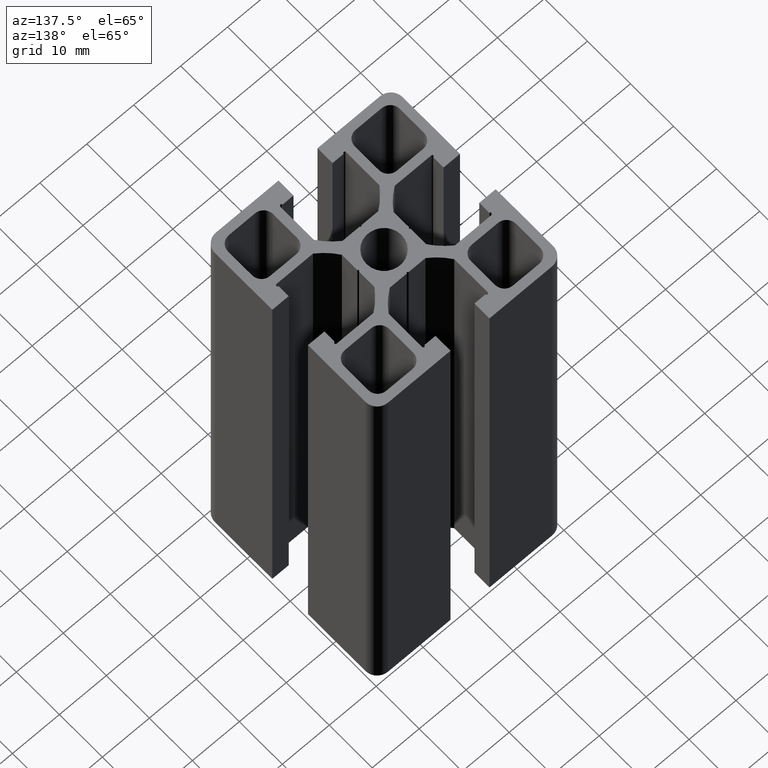
[diagram: clean part render]
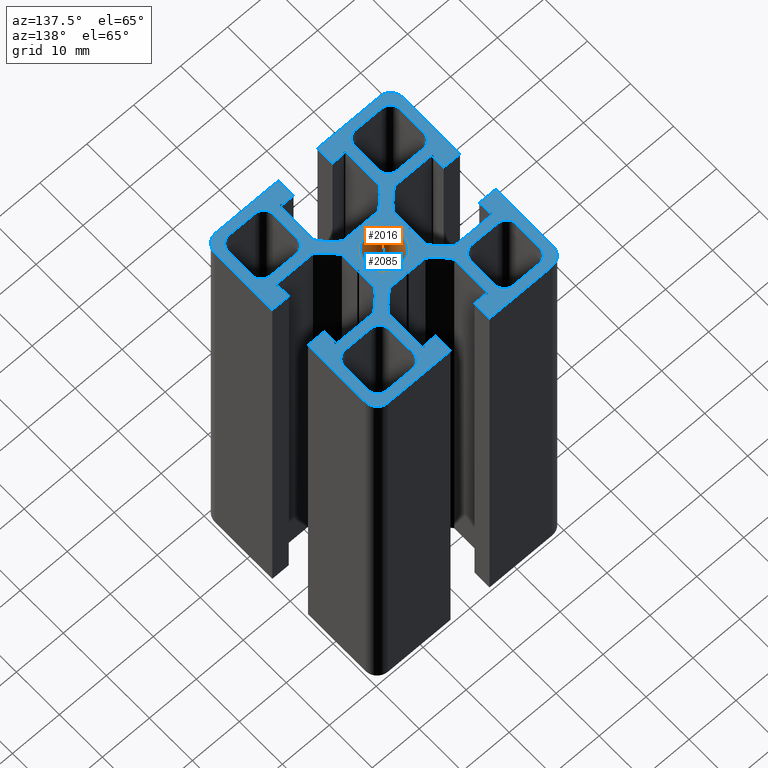
[diagram: same view with the hole feature highlighted: cylindrical wall and planar end face, labeled with their STEP entity ids]
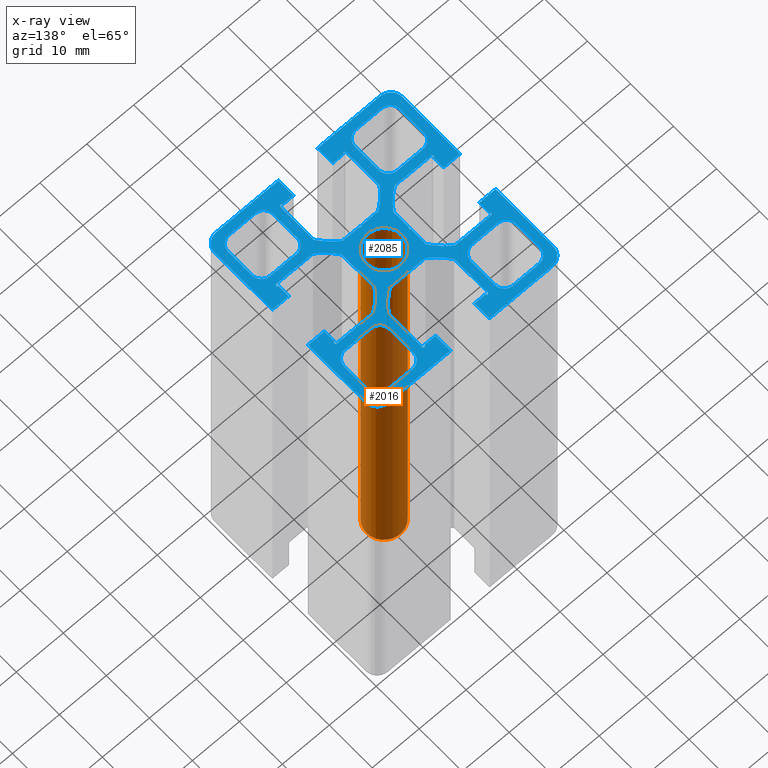
[diagram: x-ray of the same camera — body ghosted, the hole faces saturated]
A machine part, auxiliary view. The highlighted faces form one hole feature of diameter 7.47 mm: the cylindrical wall (entity #2016, orange) and its adjacent planar end face (entity #2085, blue) — they share a circular edge in the B-rep.
The next image is the same camera in x-ray (body ghosted, the hole faces saturated) — the bore reads through the body.
Wall:
#15=FACE_BOUND('',#228,.T.);
#124=FACE_OUTER_BOUND('',#227,.T.);
#227=EDGE_LOOP('',(#1471));
#228=EDGE_LOOP('',(#1472));
#797=CIRCLE('',#2154,3.735);
#798=CIRCLE('',#2155,3.735);
#903=VERTEX_POINT('',#3044);
#904=VERTEX_POINT('',#3046);
#1137=EDGE_CURVE('',#903,#903,#797,.T.);
#1138=EDGE_CURVE('',#904,#904,#798,.T.);
#1471=ORIENTED_EDGE('',*,*,#1137,.F.);
#1472=ORIENTED_EDGE('',*,*,#1138,.F.);
#1963=CYLINDRICAL_SURFACE('',#2153,3.735);
#2016=ADVANCED_FACE('',(#124,#15),#1963,.F.);
#2153=AXIS2_PLACEMENT_3D('',#3043,#2460,#2461);
#2154=AXIS2_PLACEMENT_3D('',#3045,#2462,#2463);
#2155=AXIS2_PLACEMENT_3D('',#3047,#2464,#2465);
#2460=DIRECTION('center_axis',(0.,0.,1.));
#2461=DIRECTION('ref_axis',(-1.,0.,0.));
#2462=DIRECTION('center_axis',(0.,0.,-1.));
#2463=DIRECTION('ref_axis',(-1.,0.,0.));
#2464=DIRECTION('center_axis',(0.,0.,1.));
#2465=DIRECTION('ref_axis',(-1.,0.,0.));
#3043=CARTESIAN_POINT('Origin',(-1.06581410364015E-13,3.5527136788005E-14,
0.));
#3044=CARTESIAN_POINT('',(3.73499999999989,3.59845423674865E-14,100.));
#3045=CARTESIAN_POINT('Origin',(-1.06581410364015E-13,3.5527136788005E-14,
100.));
#3046=CARTESIAN_POINT('',(3.73499999999989,3.59845423674865E-14,0.));
#3047=CARTESIAN_POINT('Origin',(-1.06581410364015E-13,3.5527136788005E-14,
0.));
End face:
#16=FACE_BOUND('',#298,.T.);
#17=FACE_BOUND('',#299,.T.);
#18=FACE_BOUND('',#300,.T.);
#19=FACE_BOUND('',#301,.T.);
#20=FACE_BOUND('',#302,.T.);
#90=PLANE('',#2264);
#193=FACE_OUTER_BOUND('',#297,.T.);
#297=EDGE_LOOP('',(#1745,#1746,#1747,#1748,#1749,#1750,#1751,#1752,#1753,
#1754,#1755,#1756,#1757,#1758,#1759,#1760,#1761,#1762,#1763,#1764,#1765,
#1766,#1767,#1768,#1769,#1770,#1771,#1772,#1773,#1774,#1775,#1776,#1777,
#1778,#1779,#1780,#1781,#1782,#1783,#1784,#1785,#1786,#1787,#1788,#1789,
#1790,#1791,#1792,#1793,#1794,#1795,#1796,#1797,#1798,#1799,#1800,#1801,
#1802,#1803,#1804,#1805,#1806,#1807,#1808,#1809,#1810,#1811,#1812));
#298=EDGE_LOOP('',(#1813,#1814,#1815,#1816,#1817,#1818,#1819,#1820));
#299=EDGE_LOOP('',(#1821,#1822,#1823,#1824,#1825,#1826,#1827,#1828));
#300=EDGE_LOOP('',(#1829,#1830,#1831,#1832,#1833,#1834,#1835,#1836));
#301=EDGE_LOOP('',(#1837,#1838,#1839,#1840,#1841,#1842,#1843,#1844));
#302=EDGE_LOOP('',(#1845));
#313=LINE('',#2865,#541);
#317=LINE('',#2877,#545);
#321=LINE('',#2889,#549);
#324=LINE('',#2898,#552);
#329=LINE('',#2913,#557);
#333=LINE('',#2925,#561);
#337=LINE('',#2937,#565);
#340=LINE('',#2946,#568);
#343=LINE('',#2954,#571);
#348=LINE('',#2967,#576);
#352=LINE('',#2979,#580);
#356=LINE('',#2991,#584);
#359=LINE('',#3002,#587);
#364=LINE('',#3015,#592);
#368=LINE('',#3027,#596);
#372=LINE('',#3039,#600);
#375=LINE('',#3055,#603);
#378=LINE('',#3061,#606);
#381=LINE('',#3067,#609);
#384=LINE('',#3073,#612);
#388=LINE('',#3085,#616);
#392=LINE('',#3097,#620);
#395=LINE('',#3103,#623);
#398=LINE('',#3109,#626);
#402=LINE('',#3121,#630);
#405=LINE('',#3127,#633);
#408=LINE('',#3133,#636);
#412=LINE('',#3145,#640);
#416=LINE('',#3157,#644);
#419=LINE('',#3163,#647);
#422=LINE('',#3169,#650);
#425=LINE('',#3175,#653);
#429=LINE('',#3187,#657);
#433=LINE('',#3199,#661);
#436=LINE('',#3205,#664);
#439=LINE('',#3211,#667);
#443=LINE('',#3223,#671);
#446=LINE('',#3229,#674);
#449=LINE('',#3235,#677);
#453=LINE('',#3247,#681);
#457=LINE('',#3259,#685);
#460=LINE('',#3265,#688);
#463=LINE('',#3271,#691);
#466=LINE('',#3277,#694);
#470=LINE('',#3289,#698);
#474=LINE('',#3301,#702);
#477=LINE('',#3307,#705);
#480=LINE('',#3313,#708);
#484=LINE('',#3325,#712);
#487=LINE('',#3331,#715);
#490=LINE('',#3337,#718);
#494=LINE('',#3349,#722);
#498=LINE('',#3361,#726);
#501=LINE('',#3367,#729);
#504=LINE('',#3373,#732);
#507=LINE('',#3379,#735);
#511=LINE('',#3391,#739);
#515=LINE('',#3403,#743);
#518=LINE('',#3409,#746);
#521=LINE('',#3415,#749);
#525=LINE('',#3427,#753);
#528=LINE('',#3433,#756);
#531=LINE('',#3439,#759);
#535=LINE('',#3451,#763);
#541=VECTOR('',#2280,5.60000000000006);
#545=VECTOR('',#2292,5.60000000000021);
#549=VECTOR('',#2304,5.60000000000016);
#552=VECTOR('',#2315,5.60000000000012);
#557=VECTOR('',#2328,5.60000000000019);
#561=VECTOR('',#2340,5.6000000000002);
#565=VECTOR('',#2352,5.60000000000013);
#568=VECTOR('',#2363,5.60000000000009);
#571=VECTOR('',#2368,5.60000000000019);
#576=VECTOR('',#2381,5.60000000000009);
#580=VECTOR('',#2393,5.60000000000013);
#584=VECTOR('',#2405,5.6000000000002);
#587=VECTOR('',#2416,5.60000000000012);
#592=VECTOR('',#2429,5.6000000000002);
#596=VECTOR('',#2441,5.60000000000021);
#600=VECTOR('',#2453,5.60000000000009);
#603=VECTOR('',#2470,3.60000000000007);
#606=VECTOR('',#2475,0.282842712474622);
#609=VECTOR('',#2480,0.282842712474566);
#612=VECTOR('',#2485,3.60000000000005);
#616=VECTOR('',#2497,7.80000000000003);
#620=VECTOR('',#2509,2.35);
#623=VECTOR('',#2514,3.50000000000001);
#626=VECTOR('',#2519,13.3500000000001);
#630=VECTOR('',#2531,13.3500000000001);
#633=VECTOR('',#2536,3.5);
#636=VECTOR('',#2541,2.34999999999999);
#640=VECTOR('',#2553,7.80000000000001);
#644=VECTOR('',#2565,3.60000000000003);
#647=VECTOR('',#2570,0.282842712474525);
#650=VECTOR('',#2575,0.282842712474676);
#653=VECTOR('',#2580,3.60000000000007);
#657=VECTOR('',#2592,7.80000000000001);
#661=VECTOR('',#2604,2.34999999999999);
#664=VECTOR('',#2609,3.5);
#667=VECTOR('',#2614,13.3500000000001);
#671=VECTOR('',#2626,13.3500000000001);
#674=VECTOR('',#2631,3.50000000000001);
#677=VECTOR('',#2636,2.35000000000002);
#681=VECTOR('',#2648,7.80000000000003);
#685=VECTOR('',#2660,3.60000000000005);
#688=VECTOR('',#2665,0.282842712474786);
#691=VECTOR('',#2670,0.282842712474403);
#694=VECTOR('',#2675,3.60000000000007);
#698=VECTOR('',#2687,7.80000000000005);
#702=VECTOR('',#2699,2.35000000000001);
#705=VECTOR('',#2704,3.50000000000001);
#708=VECTOR('',#2709,13.3500000000001);
#712=VECTOR('',#2721,13.3500000000001);
#715=VECTOR('',#2726,3.49999999999998);
#718=VECTOR('',#2731,2.34999999999999);
#722=VECTOR('',#2743,7.80000000000002);
#726=VECTOR('',#2755,3.60000000000007);
#729=VECTOR('',#2760,0.2828427124746);
#732=VECTOR('',#2765,0.282842712474626);
#735=VECTOR('',#2770,3.60000000000003);
#739=VECTOR('',#2782,7.8);
#743=VECTOR('',#2794,2.35000000000003);
#746=VECTOR('',#2799,3.49999999999998);
#749=VECTOR('',#2804,13.3500000000001);
#753=VECTOR('',#2816,13.3500000000001);
#756=VECTOR('',#2821,3.50000000000001);
#759=VECTOR('',#2826,2.34999999999999);
#763=VECTOR('',#2838,7.80000000000005);
#766=CIRCLE('',#2091,2.);
#768=CIRCLE('',#2095,2.);
#770=CIRCLE('',#2099,2.);
#772=CIRCLE('',#2103,2.);
#774=CIRCLE('',#2107,2.);
#776=CIRCLE('',#2111,2.);
#778=CIRCLE('',#2115,2.);
#780=CIRCLE('',#2119,2.);
#782=CIRCLE('',#2124,2.);
#784=CIRCLE('',#2128,2.);
#786=CIRCLE('',#2132,2.);
#788=CIRCLE('',#2136,2.);
#790=CIRCLE('',#2140,2.);
#792=CIRCLE('',#2144,2.);
#794=CIRCLE('',#2148,2.);
#796=CIRCLE('',#2152,2.);
#797=CIRCLE('',#2154,3.735);
#800=CIRCLE('',#2162,12.8999999999991);
#802=CIRCLE('',#2166,0.249999999999986);
#804=CIRCLE('',#2172,2.49999999999996);
#806=CIRCLE('',#2178,0.249999999999986);
#808=CIRCLE('',#2182,12.8999999999991);
#810=CIRCLE('',#2189,12.8999999999991);
#812=CIRCLE('',#2193,0.249999999999986);
#814=CIRCLE('',#2199,2.49999999999996);
#816=CIRCLE('',#2205,0.249999999999986);
#818=CIRCLE('',#2209,12.8999999999991);
#820=CIRCLE('',#2216,12.8999999999991);
#822=CIRCLE('',#2220,0.249999999999986);
#824=CIRCLE('',#2226,2.49999999999996);
#826=CIRCLE('',#2232,0.249999999999986);
#828=CIRCLE('',#2236,12.8999999999991);
#830=CIRCLE('',#2243,12.8999999999991);
#832=CIRCLE('',#2247,0.249999999999986);
#834=CIRCLE('',#2253,2.49999999999996);
#836=CIRCLE('',#2259,0.249999999999986);
#838=CIRCLE('',#2263,12.8999999999991);
#841=VERTEX_POINT('',#2855);
#842=VERTEX_POINT('',#2857);
#844=VERTEX_POINT('',#2863);
#846=VERTEX_POINT('',#2869);
#848=VERTEX_POINT('',#2875);
#850=VERTEX_POINT('',#2881);
#852=VERTEX_POINT('',#2887);
#854=VERTEX_POINT('',#2893);
#857=VERTEX_POINT('',#2903);
#858=VERTEX_POINT('',#2905);
#860=VERTEX_POINT('',#2911);
#862=VERTEX_POINT('',#2917);
#864=VERTEX_POINT('',#2923);
#866=VERTEX_POINT('',#2929);
#868=VERTEX_POINT('',#2935);
#870=VERTEX_POINT('',#2941);
#873=VERTEX_POINT('',#2951);
#874=VERTEX_POINT('',#2953);
#876=VERTEX_POINT('',#2959);
#878=VERTEX_POINT('',#2965);
#880=VERTEX_POINT('',#2971);
#882=VERTEX_POINT('',#2977);
#884=VERTEX_POINT('',#2983);
#886=VERTEX_POINT('',#2989);
#889=VERTEX_POINT('',#2999);
#890=VERTEX_POINT('',#3001);
#892=VERTEX_POINT('',#3007);
#894=VERTEX_POINT('',#3013);
#896=VERTEX_POINT('',#3019);
#898=VERTEX_POINT('',#3025);
#900=VERTEX_POINT('',#3031);
#902=VERTEX_POINT('',#3037);
#903=VERTEX_POINT('',#3044);
#907=VERTEX_POINT('',#3052);
#908=VERTEX_POINT('',#3054);
#910=VERTEX_POINT('',#3060);
#912=VERTEX_POINT('',#3066);
#914=VERTEX_POINT('',#3072);
#916=VERTEX_POINT('',#3078);
#918=VERTEX_POINT('',#3084);
#920=VERTEX_POINT('',#3090);
#922=VERTEX_POINT('',#3096);
#924=VERTEX_POINT('',#3102);
#926=VERTEX_POINT('',#3108);
#928=VERTEX_POINT('',#3114);
#930=VERTEX_POINT('',#3120);
#932=VERTEX_POINT('',#3126);
#934=VERTEX_POINT('',#3132);
#936=VERTEX_POINT('',#3138);
#938=VERTEX_POINT('',#3144);
#940=VERTEX_POINT('',#3150);
#942=VERTEX_POINT('',#3156);
#944=VERTEX_POINT('',#3162);
#946=VERTEX_POINT('',#3168);
#948=VERTEX_POINT('',#3174);
#950=VERTEX_POINT('',#3180);
#952=VERTEX_POINT('',#3186);
#954=VERTEX_POINT('',#3192);
#956=VERTEX_POINT('',#3198);
#958=VERTEX_POINT('',#3204);
#960=VERTEX_POINT('',#3210);
#962=VERTEX_POINT('',#3216);
#964=VERTEX_POINT('',#3222);
#966=VERTEX_POINT('',#3228);
#968=VERTEX_POINT('',#3234);
#970=VERTEX_POINT('',#3240);
#972=VERTEX_POINT('',#3246);
#974=VERTEX_POINT('',#3252);
#976=VERTEX_POINT('',#3258);
#978=VERTEX_POINT('',#3264);
#980=VERTEX_POINT('',#3270);
#982=VERTEX_POINT('',#3276);
#984=VERTEX_POINT('',#3282);
#986=VERTEX_POINT('',#3288);
#988=VERTEX_POINT('',#3294);
#990=VERTEX_POINT('',#3300);
#992=VERTEX_POINT('',#3306);
#994=VERTEX_POINT('',#3312);
#996=VERTEX_POINT('',#3318);
#998=VERTEX_POINT('',#3324);
#1000=VERTEX_POINT('',#3330);
#1002=VERTEX_POINT('',#3336);
#1004=VERTEX_POINT('',#3342);
#1006=VERTEX_POINT('',#3348);
#1008=VERTEX_POINT('',#3354);
#1010=VERTEX_POINT('',#3360);
#1012=VERTEX_POINT('',#3366);
#1014=VERTEX_POINT('',#3372);
#1016=VERTEX_POINT('',#3378);
#1018=VERTEX_POINT('',#3384);
#1020=VERTEX_POINT('',#3390);
#1022=VERTEX_POINT('',#3396);
#1024=VERTEX_POINT('',#3402);
#1026=VERTEX_POINT('',#3408);
#1028=VERTEX_POINT('',#3414);
#1030=VERTEX_POINT('',#3420);
#1032=VERTEX_POINT('',#3426);
#1034=VERTEX_POINT('',#3432);
#1036=VERTEX_POINT('',#3438);
#1038=VERTEX_POINT('',#3444);
#1040=VERTEX_POINT('',#3450);
#1043=EDGE_CURVE('',#842,#841,#766,.T.);
#1047=EDGE_CURVE('',#841,#844,#313,.T.);
#1050=EDGE_CURVE('',#844,#846,#768,.T.);
#1053=EDGE_CURVE('',#846,#848,#317,.T.);
#1056=EDGE_CURVE('',#848,#850,#770,.T.);
#1059=EDGE_CURVE('',#850,#852,#321,.T.);
#1062=EDGE_CURVE('',#852,#854,#772,.T.);
#1064=EDGE_CURVE('',#854,#842,#324,.T.);
#1067=EDGE_CURVE('',#858,#857,#774,.T.);
#1071=EDGE_CURVE('',#857,#860,#329,.T.);
#1074=EDGE_CURVE('',#860,#862,#776,.T.);
#1077=EDGE_CURVE('',#862,#864,#333,.T.);
#1080=EDGE_CURVE('',#864,#866,#778,.T.);
#1083=EDGE_CURVE('',#866,#868,#337,.T.);
#1086=EDGE_CURVE('',#868,#870,#780,.T.);
#1088=EDGE_CURVE('',#870,#858,#340,.T.);
#1091=EDGE_CURVE('',#874,#873,#343,.T.);
#1095=EDGE_CURVE('',#873,#876,#782,.T.);
#1098=EDGE_CURVE('',#876,#878,#348,.T.);
#1101=EDGE_CURVE('',#878,#880,#784,.T.);
#1104=EDGE_CURVE('',#880,#882,#352,.T.);
#1107=EDGE_CURVE('',#882,#884,#786,.T.);
#1110=EDGE_CURVE('',#884,#886,#356,.T.);
#1112=EDGE_CURVE('',#886,#874,#788,.T.);
#1115=EDGE_CURVE('',#890,#889,#359,.T.);
#1119=EDGE_CURVE('',#889,#892,#790,.T.);
#1122=EDGE_CURVE('',#892,#894,#364,.T.);
#1125=EDGE_CURVE('',#894,#896,#792,.T.);
#1128=EDGE_CURVE('',#896,#898,#368,.T.);
#1131=EDGE_CURVE('',#898,#900,#794,.T.);
#1134=EDGE_CURVE('',#900,#902,#372,.T.);
#1136=EDGE_CURVE('',#902,#890,#796,.T.);
#1137=EDGE_CURVE('',#903,#903,#797,.T.);
#1141=EDGE_CURVE('',#908,#907,#375,.T.);
#1144=EDGE_CURVE('',#910,#908,#378,.T.);
#1147=EDGE_CURVE('',#912,#910,#381,.T.);
#1150=EDGE_CURVE('',#914,#912,#384,.T.);
#1153=EDGE_CURVE('',#916,#914,#800,.T.);
#1156=EDGE_CURVE('',#918,#916,#388,.T.);
#1159=EDGE_CURVE('',#920,#918,#802,.T.);
#1162=EDGE_CURVE('',#922,#920,#392,.T.);
#1165=EDGE_CURVE('',#924,#922,#395,.T.);
#1168=EDGE_CURVE('',#926,#924,#398,.T.);
#1171=EDGE_CURVE('',#928,#926,#804,.T.);
#1174=EDGE_CURVE('',#930,#928,#402,.T.);
#1177=EDGE_CURVE('',#932,#930,#405,.T.);
#1180=EDGE_CURVE('',#934,#932,#408,.T.);
#1183=EDGE_CURVE('',#936,#934,#806,.T.);
#1186=EDGE_CURVE('',#938,#936,#412,.T.);
#1189=EDGE_CURVE('',#940,#938,#808,.T.);
#1192=EDGE_CURVE('',#942,#940,#416,.T.);
#1195=EDGE_CURVE('',#944,#942,#419,.T.);
#1198=EDGE_CURVE('',#946,#944,#422,.T.);
#1201=EDGE_CURVE('',#948,#946,#425,.T.);
#1204=EDGE_CURVE('',#950,#948,#810,.T.);
#1207=EDGE_CURVE('',#952,#950,#429,.T.);
#1210=EDGE_CURVE('',#954,#952,#812,.T.);
#1213=EDGE_CURVE('',#956,#954,#433,.T.);
#1216=EDGE_CURVE('',#958,#956,#436,.T.);
#1219=EDGE_CURVE('',#960,#958,#439,.T.);
#1222=EDGE_CURVE('',#962,#960,#814,.T.);
#1225=EDGE_CURVE('',#964,#962,#443,.T.);
#1228=EDGE_CURVE('',#966,#964,#446,.T.);
#1231=EDGE_CURVE('',#968,#966,#449,.T.);
#1234=EDGE_CURVE('',#970,#968,#816,.T.);
#1237=EDGE_CURVE('',#972,#970,#453,.T.);
#1240=EDGE_CURVE('',#974,#972,#818,.T.);
#1243=EDGE_CURVE('',#976,#974,#457,.T.);
#1246=EDGE_CURVE('',#978,#976,#460,.T.);
#1249=EDGE_CURVE('',#980,#978,#463,.T.);
#1252=EDGE_CURVE('',#982,#980,#466,.T.);
#1255=EDGE_CURVE('',#984,#982,#820,.T.);
#1258=EDGE_CURVE('',#986,#984,#470,.T.);
#1261=EDGE_CURVE('',#988,#986,#822,.T.);
#1264=EDGE_CURVE('',#990,#988,#474,.T.);
#1267=EDGE_CURVE('',#992,#990,#477,.T.);
#1270=EDGE_CURVE('',#994,#992,#480,.T.);
#1273=EDGE_CURVE('',#996,#994,#824,.T.);
#1276=EDGE_CURVE('',#998,#996,#484,.T.);
#1279=EDGE_CURVE('',#1000,#998,#487,.T.);
#1282=EDGE_CURVE('',#1002,#1000,#490,.T.);
#1285=EDGE_CURVE('',#1004,#1002,#826,.T.);
#1288=EDGE_CURVE('',#1006,#1004,#494,.T.);
#1291=EDGE_CURVE('',#1008,#1006,#828,.T.);
#1294=EDGE_CURVE('',#1010,#1008,#498,.T.);
#1297=EDGE_CURVE('',#1012,#1010,#501,.T.);
#1300=EDGE_CURVE('',#1014,#1012,#504,.T.);
#1303=EDGE_CURVE('',#1016,#1014,#507,.T.);
#1306=EDGE_CURVE('',#1018,#1016,#830,.T.);
#1309=EDGE_CURVE('',#1020,#1018,#511,.T.);
#1312=EDGE_CURVE('',#1022,#1020,#832,.T.);
#1315=EDGE_CURVE('',#1024,#1022,#515,.T.);
#1318=EDGE_CURVE('',#1026,#1024,#518,.T.);
#1321=EDGE_CURVE('',#1028,#1026,#521,.T.);
#1324=EDGE_CURVE('',#1030,#1028,#834,.T.);
#1327=EDGE_CURVE('',#1032,#1030,#525,.T.);
#1330=EDGE_CURVE('',#1034,#1032,#528,.T.);
#1333=EDGE_CURVE('',#1036,#1034,#531,.T.);
#1336=EDGE_CURVE('',#1038,#1036,#836,.T.);
#1339=EDGE_CURVE('',#1040,#1038,#535,.T.);
#1342=EDGE_CURVE('',#907,#1040,#838,.T.);
#1745=ORIENTED_EDGE('',*,*,#1342,.T.);
#1746=ORIENTED_EDGE('',*,*,#1339,.T.);
#1747=ORIENTED_EDGE('',*,*,#1336,.T.);
#1748=ORIENTED_EDGE('',*,*,#1333,.T.);
#1749=ORIENTED_EDGE('',*,*,#1330,.T.);
#1750=ORIENTED_EDGE('',*,*,#1327,.T.);
#1751=ORIENTED_EDGE('',*,*,#1324,.T.);
#1752=ORIENTED_EDGE('',*,*,#1321,.T.);
#1753=ORIENTED_EDGE('',*,*,#1318,.T.);
#1754=ORIENTED_EDGE('',*,*,#1315,.T.);
#1755=ORIENTED_EDGE('',*,*,#1312,.T.);
#1756=ORIENTED_EDGE('',*,*,#1309,.T.);
#1757=ORIENTED_EDGE('',*,*,#1306,.T.);
#1758=ORIENTED_EDGE('',*,*,#1303,.T.);
#1759=ORIENTED_EDGE('',*,*,#1300,.T.);
#1760=ORIENTED_EDGE('',*,*,#1297,.T.);
#1761=ORIENTED_EDGE('',*,*,#1294,.T.);
#1762=ORIENTED_EDGE('',*,*,#1291,.T.);
#1763=ORIENTED_EDGE('',*,*,#1288,.T.);
#1764=ORIENTED_EDGE('',*,*,#1285,.T.);
#1765=ORIENTED_EDGE('',*,*,#1282,.T.);
#1766=ORIENTED_EDGE('',*,*,#1279,.T.);
#1767=ORIENTED_EDGE('',*,*,#1276,.T.);
#1768=ORIENTED_EDGE('',*,*,#1273,.T.);
#1769=ORIENTED_EDGE('',*,*,#1270,.T.);
#1770=ORIENTED_EDGE('',*,*,#1267,.T.);
#1771=ORIENTED_EDGE('',*,*,#1264,.T.);
#1772=ORIENTED_EDGE('',*,*,#1261,.T.);
#1773=ORIENTED_EDGE('',*,*,#1258,.T.);
#1774=ORIENTED_EDGE('',*,*,#1255,.T.);
#1775=ORIENTED_EDGE('',*,*,#1252,.T.);
#1776=ORIENTED_EDGE('',*,*,#1249,.T.);
#1777=ORIENTED_EDGE('',*,*,#1246,.T.);
#1778=ORIENTED_EDGE('',*,*,#1243,.T.);
#1779=ORIENTED_EDGE('',*,*,#1240,.T.);
#1780=ORIENTED_EDGE('',*,*,#1237,.T.);
#1781=ORIENTED_EDGE('',*,*,#1234,.T.);
#1782=ORIENTED_EDGE('',*,*,#1231,.T.);
#1783=ORIENTED_EDGE('',*,*,#1228,.T.);
#1784=ORIENTED_EDGE('',*,*,#1225,.T.);
#1785=ORIENTED_EDGE('',*,*,#1222,.T.);
#1786=ORIENTED_EDGE('',*,*,#1219,.T.);
#1787=ORIENTED_EDGE('',*,*,#1216,.T.);
#1788=ORIENTED_EDGE('',*,*,#1213,.T.);
#1789=ORIENTED_EDGE('',*,*,#1210,.T.);
#1790=ORIENTED_EDGE('',*,*,#1207,.T.);
#1791=ORIENTED_EDGE('',*,*,#1204,.T.);
#1792=ORIENTED_EDGE('',*,*,#1201,.T.);
#1793=ORIENTED_EDGE('',*,*,#1198,.T.);
#1794=ORIENTED_EDGE('',*,*,#1195,.T.);
#1795=ORIENTED_EDGE('',*,*,#1192,.T.);
#1796=ORIENTED_EDGE('',*,*,#1189,.T.);
#1797=ORIENTED_EDGE('',*,*,#1186,.T.);
#1798=ORIENTED_EDGE('',*,*,#1183,.T.);
#1799=ORIENTED_EDGE('',*,*,#1180,.T.);
#1800=ORIENTED_EDGE('',*,*,#1177,.T.);
#1801=ORIENTED_EDGE('',*,*,#1174,.T.);
#1802=ORIENTED_EDGE('',*,*,#1171,.T.);
#1803=ORIENTED_EDGE('',*,*,#1168,.T.);
#1804=ORIENTED_EDGE('',*,*,#1165,.T.);
#1805=ORIENTED_EDGE('',*,*,#1162,.T.);
#1806=ORIENTED_EDGE('',*,*,#1159,.T.);
#1807=ORIENTED_EDGE('',*,*,#1156,.T.);
#1808=ORIENTED_EDGE('',*,*,#1153,.T.);
#1809=ORIENTED_EDGE('',*,*,#1150,.T.);
#1810=ORIENTED_EDGE('',*,*,#1147,.T.);
#1811=ORIENTED_EDGE('',*,*,#1144,.T.);
#1812=ORIENTED_EDGE('',*,*,#1141,.T.);
#1813=ORIENTED_EDGE('',*,*,#1043,.T.);
#1814=ORIENTED_EDGE('',*,*,#1047,.T.);
#1815=ORIENTED_EDGE('',*,*,#1050,.T.);
#1816=ORIENTED_EDGE('',*,*,#1053,.T.);
#1817=ORIENTED_EDGE('',*,*,#1056,.T.);
#1818=ORIENTED_EDGE('',*,*,#1059,.T.);
#1819=ORIENTED_EDGE('',*,*,#1062,.T.);
#1820=ORIENTED_EDGE('',*,*,#1064,.T.);
#1821=ORIENTED_EDGE('',*,*,#1067,.T.);
#1822=ORIENTED_EDGE('',*,*,#1071,.T.);
#1823=ORIENTED_EDGE('',*,*,#1074,.T.);
#1824=ORIENTED_EDGE('',*,*,#1077,.T.);
#1825=ORIENTED_EDGE('',*,*,#1080,.T.);
#1826=ORIENTED_EDGE('',*,*,#1083,.T.);
#1827=ORIENTED_EDGE('',*,*,#1086,.T.);
#1828=ORIENTED_EDGE('',*,*,#1088,.T.);
#1829=ORIENTED_EDGE('',*,*,#1091,.T.);
#1830=ORIENTED_EDGE('',*,*,#1095,.T.);
#1831=ORIENTED_EDGE('',*,*,#1098,.T.);
#1832=ORIENTED_EDGE('',*,*,#1101,.T.);
#1833=ORIENTED_EDGE('',*,*,#1104,.T.);
#1834=ORIENTED_EDGE('',*,*,#1107,.T.);
#1835=ORIENTED_EDGE('',*,*,#1110,.T.);
#1836=ORIENTED_EDGE('',*,*,#1112,.T.);
#1837=ORIENTED_EDGE('',*,*,#1115,.T.);
#1838=ORIENTED_EDGE('',*,*,#1119,.T.);
#1839=ORIENTED_EDGE('',*,*,#1122,.T.);
#1840=ORIENTED_EDGE('',*,*,#1125,.T.);
#1841=ORIENTED_EDGE('',*,*,#1128,.T.);
#1842=ORIENTED_EDGE('',*,*,#1131,.T.);
#1843=ORIENTED_EDGE('',*,*,#1134,.T.);
#1844=ORIENTED_EDGE('',*,*,#1136,.T.);
#1845=ORIENTED_EDGE('',*,*,#1137,.T.);
#2085=ADVANCED_FACE('',(#193,#16,#17,#18,#19,#20),#90,.T.);
#2091=AXIS2_PLACEMENT_3D('',#2858,#2273,#2274);
#2095=AXIS2_PLACEMENT_3D('',#2871,#2286,#2287);
#2099=AXIS2_PLACEMENT_3D('',#2883,#2298,#2299);
#2103=AXIS2_PLACEMENT_3D('',#2895,#2310,#2311);
#2107=AXIS2_PLACEMENT_3D('',#2906,#2321,#2322);
#2111=AXIS2_PLACEMENT_3D('',#2919,#2334,#2335);
#2115=AXIS2_PLACEMENT_3D('',#2931,#2346,#2347);
#2119=AXIS2_PLACEMENT_3D('',#2943,#2358,#2359);
#2124=AXIS2_PLACEMENT_3D('',#2961,#2375,#2376);
#2128=AXIS2_PLACEMENT_3D('',#2973,#2387,#2388);
#2132=AXIS2_PLACEMENT_3D('',#2985,#2399,#2400);
#2136=AXIS2_PLACEMENT_3D('',#2994,#2410,#2411);
#2140=AXIS2_PLACEMENT_3D('',#3009,#2423,#2424);
#2144=AXIS2_PLACEMENT_3D('',#3021,#2435,#2436);
#2148=AXIS2_PLACEMENT_3D('',#3033,#2447,#2448);
#2152=AXIS2_PLACEMENT_3D('',#3042,#2458,#2459);
#2154=AXIS2_PLACEMENT_3D('',#3045,#2462,#2463);
#2162=AXIS2_PLACEMENT_3D('',#3079,#2491,#2492);
#2166=AXIS2_PLACEMENT_3D('',#3091,#2503,#2504);
#2172=AXIS2_PLACEMENT_3D('',#3115,#2525,#2526);
#2178=AXIS2_PLACEMENT_3D('',#3139,#2547,#2548);
#2182=AXIS2_PLACEMENT_3D('',#3151,#2559,#2560);
#2189=AXIS2_PLACEMENT_3D('',#3181,#2586,#2587);
#2193=AXIS2_PLACEMENT_3D('',#3193,#2598,#2599);
#2199=AXIS2_PLACEMENT_3D('',#3217,#2620,#2621);
#2205=AXIS2_PLACEMENT_3D('',#3241,#2642,#2643);
#2209=AXIS2_PLACEMENT_3D('',#3253,#2654,#2655);
#2216=AXIS2_PLACEMENT_3D('',#3283,#2681,#2682);
#2220=AXIS2_PLACEMENT_3D('',#3295,#2693,#2694);
#2226=AXIS2_PLACEMENT_3D('',#3319,#2715,#2716);
#2232=AXIS2_PLACEMENT_3D('',#3343,#2737,#2738);
#2236=AXIS2_PLACEMENT_3D('',#3355,#2749,#2750);
#2243=AXIS2_PLACEMENT_3D('',#3385,#2776,#2777);
#2247=AXIS2_PLACEMENT_3D('',#3397,#2788,#2789);
#2253=AXIS2_PLACEMENT_3D('',#3421,#2810,#2811);
#2259=AXIS2_PLACEMENT_3D('',#3445,#2832,#2833);
#2263=AXIS2_PLACEMENT_3D('',#3455,#2844,#2845);
#2264=AXIS2_PLACEMENT_3D('',#3456,#2846,#2847);
#2273=DIRECTION('center_axis',(0.,0.,-1.));
#2274=DIRECTION('ref_axis',(1.,0.,0.));
#2280=DIRECTION('',(0.,-1.,0.));
#2286=DIRECTION('center_axis',(0.,0.,-1.));
#2287=DIRECTION('ref_axis',(1.77635683940026E-14,-1.,0.));
#2292=DIRECTION('',(-1.,-2.53765262771455E-14,0.));
#2298=DIRECTION('center_axis',(0.,0.,-1.));
#2299=DIRECTION('ref_axis',(-1.,1.77635683940025E-14,0.));
#2304=DIRECTION('',(1.26882631385728E-14,1.,0.));
#2310=DIRECTION('center_axis',(0.,0.,-1.));
#2311=DIRECTION('ref_axis',(0.,1.,0.));
#2315=DIRECTION('',(1.,0.,0.));
#2321=DIRECTION('center_axis',(0.,0.,-1.));
#2322=DIRECTION('ref_axis',(-1.33226762955019E-14,1.,0.));
#2328=DIRECTION('',(1.,2.53765262771456E-14,0.));
#2334=DIRECTION('center_axis',(0.,0.,-1.));
#2335=DIRECTION('ref_axis',(1.,-1.77635683940025E-14,0.));
#2340=DIRECTION('',(-1.11022302462512E-14,-1.,0.));
#2346=DIRECTION('center_axis',(0.,0.,-1.));
#2347=DIRECTION('ref_axis',(8.88178419700128E-15,-1.,0.));
#2352=DIRECTION('',(-1.,-6.34413156928646E-15,0.));
#2358=DIRECTION('center_axis',(0.,0.,-1.));
#2359=DIRECTION('ref_axis',(-1.,0.,0.));
#2363=DIRECTION('',(0.,1.,0.));
#2368=DIRECTION('',(-1.,2.53765262771456E-14,0.));
#2375=DIRECTION('center_axis',(0.,0.,-1.));
#2376=DIRECTION('ref_axis',(1.,0.,0.));
#2381=DIRECTION('',(0.,1.,0.));
#2387=DIRECTION('center_axis',(0.,0.,-1.));
#2388=DIRECTION('ref_axis',(-8.88178419700128E-15,-1.,0.));
#2393=DIRECTION('',(1.,0.,0.));
#2399=DIRECTION('center_axis',(0.,0.,-1.));
#2400=DIRECTION('ref_axis',(-1.,0.,0.));
#2405=DIRECTION('',(1.11022302462512E-14,-1.,0.));
#2410=DIRECTION('center_axis',(0.,0.,-1.));
#2411=DIRECTION('ref_axis',(1.33226762955019E-14,1.,0.));
#2416=DIRECTION('',(-1.,0.,0.));
#2423=DIRECTION('center_axis',(0.,0.,-1.));
#2424=DIRECTION('ref_axis',(-1.,-1.77635683940023E-14,0.));
#2429=DIRECTION('',(-6.34413156928638E-15,1.,0.));
#2435=DIRECTION('center_axis',(0.,0.,-1.));
#2436=DIRECTION('ref_axis',(8.88178419700121E-15,1.,0.));
#2441=DIRECTION('',(1.,-2.85485920617887E-14,0.));
#2447=DIRECTION('center_axis',(0.,0.,-1.));
#2448=DIRECTION('ref_axis',(1.,0.,0.));
#2453=DIRECTION('',(0.,-1.,0.));
#2458=DIRECTION('center_axis',(0.,0.,-1.));
#2459=DIRECTION('ref_axis',(-4.44089209850064E-15,-1.,0.));
#2462=DIRECTION('center_axis',(0.,0.,-1.));
#2463=DIRECTION('ref_axis',(-1.,0.,0.));
#2470=DIRECTION('',(1.,0.,0.));
#2475=DIRECTION('',(0.707106781186571,-0.707106781186524,0.));
#2480=DIRECTION('',(0.70710678118643,0.707106781186665,0.));
#2485=DIRECTION('',(1.,0.,0.));
#2491=DIRECTION('center_axis',(0.,0.,-1.));
#2492=DIRECTION('ref_axis',(0.572112877602251,-0.820174893106142,0.));
#2497=DIRECTION('',(-9.10952225333458E-15,1.,0.));
#2503=DIRECTION('center_axis',(0.,0.,-1.));
#2504=DIRECTION('ref_axis',(1.,0.,0.));
#2509=DIRECTION('',(-1.,-1.51179305480872E-14,0.));
#2514=DIRECTION('',(-5.07530525542927E-15,1.,0.));
#2519=DIRECTION('',(1.,2.66120874816515E-15,0.));
#2525=DIRECTION('center_axis',(0.,0.,1.));
#2526=DIRECTION('ref_axis',(-1.,0.,0.));
#2531=DIRECTION('',(-6.65302187041288E-16,-1.,0.));
#2536=DIRECTION('',(-1.,0.,0.));
#2541=DIRECTION('',(0.,1.,0.));
#2547=DIRECTION('center_axis',(0.,0.,-1.));
#2548=DIRECTION('ref_axis',(0.,-1.,0.));
#2553=DIRECTION('',(-1.,0.,0.));
#2559=DIRECTION('center_axis',(0.,0.,-1.));
#2560=DIRECTION('ref_axis',(-0.572112877602253,0.820174893106141,0.));
#2565=DIRECTION('',(0.,-1.,0.));
#2570=DIRECTION('',(-0.707106781186704,-0.70710678118639,0.));
#2575=DIRECTION('',(0.707106781186328,-0.707106781186767,0.));
#2580=DIRECTION('',(0.,-1.,0.));
#2586=DIRECTION('center_axis',(0.,0.,-1.));
#2587=DIRECTION('ref_axis',(-0.820174893106143,-0.57211287760225,0.));
#2592=DIRECTION('',(1.,9.1095222533346E-15,0.));
#2598=DIRECTION('center_axis',(0.,0.,-1.));
#2599=DIRECTION('ref_axis',(0.,-1.,0.));
#2604=DIRECTION('',(0.,1.,0.));
#2609=DIRECTION('',(1.,0.,0.));
#2614=DIRECTION('',(6.65302187041288E-16,-1.,0.));
#2620=DIRECTION('center_axis',(0.,0.,1.));
#2621=DIRECTION('ref_axis',(0.,1.,0.));
#2626=DIRECTION('',(-1.,5.3224174963303E-15,0.));
#2631=DIRECTION('',(5.07530525542927E-15,1.,0.));
#2636=DIRECTION('',(1.,-1.51179305480871E-14,0.));
#2642=DIRECTION('center_axis',(0.,0.,-1.));
#2643=DIRECTION('ref_axis',(-1.,0.,0.));
#2648=DIRECTION('',(1.02482125350014E-14,1.,0.));
#2654=DIRECTION('center_axis',(0.,0.,-1.));
#2655=DIRECTION('ref_axis',(0.820174893106144,0.572112877602248,0.));
#2660=DIRECTION('',(-1.,0.,0.));
#2665=DIRECTION('',(-0.707106781186979,0.707106781186116,0.));
#2670=DIRECTION('',(-0.707106781186022,-0.707106781187073,0.));
#2675=DIRECTION('',(-1.,0.,0.));
#2681=DIRECTION('center_axis',(0.,0.,-1.));
#2682=DIRECTION('ref_axis',(-0.572112877602249,0.820174893106143,0.));
#2687=DIRECTION('',(1.13869028166682E-14,-1.,0.));
#2693=DIRECTION('center_axis',(0.,0.,-1.));
#2694=DIRECTION('ref_axis',(-1.,0.,0.));
#2699=DIRECTION('',(1.,1.51179305480872E-14,0.));
#2704=DIRECTION('',(1.01506105108585E-14,-1.,0.));
#2709=DIRECTION('',(-1.,-5.32241749633029E-15,0.));
#2715=DIRECTION('center_axis',(0.,0.,1.));
#2716=DIRECTION('ref_axis',(1.,0.,0.));
#2721=DIRECTION('',(0.,1.,0.));
#2726=DIRECTION('',(1.,0.,0.));
#2731=DIRECTION('',(0.,-1.,0.));
#2737=DIRECTION('center_axis',(0.,0.,-1.));
#2738=DIRECTION('ref_axis',(0.,1.,0.));
#2743=DIRECTION('',(1.,9.10952225333459E-15,0.));
#2749=DIRECTION('center_axis',(0.,0.,-1.));
#2750=DIRECTION('ref_axis',(0.57211287760225,-0.820174893106143,0.));
#2755=DIRECTION('',(0.,1.,0.));
#2760=DIRECTION('',(0.707106781186579,0.707106781186516,0.));
#2765=DIRECTION('',(-0.707106781186516,0.707106781186579,0.));
#2770=DIRECTION('',(0.,1.,0.));
#2776=DIRECTION('center_axis',(0.,0.,-1.));
#2777=DIRECTION('ref_axis',(0.820174893106144,0.572112877602248,0.));
#2782=DIRECTION('',(-1.,-6.83214169000097E-15,0.));
#2788=DIRECTION('center_axis',(0.,0.,-1.));
#2789=DIRECTION('ref_axis',(0.,1.,0.));
#2794=DIRECTION('',(0.,-1.,0.));
#2799=DIRECTION('',(-1.,0.,0.));
#2804=DIRECTION('',(0.,1.,0.));
#2810=DIRECTION('center_axis',(0.,0.,1.));
#2811=DIRECTION('ref_axis',(0.,-1.,0.));
#2816=DIRECTION('',(1.,-2.66120874816515E-15,0.));
#2821=DIRECTION('',(-1.01506105108585E-14,-1.,0.));
#2826=DIRECTION('',(-1.,1.51179305480873E-14,0.));
#2832=DIRECTION('center_axis',(0.,0.,-1.));
#2833=DIRECTION('ref_axis',(1.,0.,0.));
#2838=DIRECTION('',(-1.13869028166682E-14,-1.,0.));
#2844=DIRECTION('center_axis',(0.,0.,-1.));
#2845=DIRECTION('ref_axis',(-0.820174893106143,-0.57211287760225,0.));
#2846=DIRECTION('center_axis',(0.,0.,1.));
#2847=DIRECTION('ref_axis',(1.,0.,0.));
#2855=CARTESIAN_POINT('',(18.2999999999999,16.3000000000001,100.));
#2857=CARTESIAN_POINT('',(16.2999999999999,18.3000000000001,100.));
#2858=CARTESIAN_POINT('Origin',(16.2999999999999,16.3000000000001,100.));
#2863=CARTESIAN_POINT('',(18.2999999999999,10.7,100.));
#2865=CARTESIAN_POINT('',(18.2999999999999,5.35000000000004,100.));
#2869=CARTESIAN_POINT('',(16.3,8.70000000000005,100.));
#2871=CARTESIAN_POINT('Origin',(16.2999999999999,10.7,100.));
#2875=CARTESIAN_POINT('',(10.6999999999998,8.6999999999999,100.));
#2877=CARTESIAN_POINT('',(5.34999999999971,8.69999999999977,100.));
#2881=CARTESIAN_POINT('',(8.69999999999972,10.6999999999999,100.));
#2883=CARTESIAN_POINT('Origin',(10.6999999999997,10.6999999999999,100.));
#2887=CARTESIAN_POINT('',(8.69999999999979,16.3000000000001,100.));
#2889=CARTESIAN_POINT('',(8.69999999999969,8.15000000000001,100.));
#2893=CARTESIAN_POINT('',(10.6999999999998,18.3000000000001,100.));
#2895=CARTESIAN_POINT('Origin',(10.6999999999998,16.3000000000001,100.));
#2898=CARTESIAN_POINT('',(8.1499999999999,18.3000000000001,100.));
#2903=CARTESIAN_POINT('',(-16.3000000000002,-8.69999999999994,100.));
#2905=CARTESIAN_POINT('',(-18.3000000000002,-10.6999999999999,100.));
#2906=CARTESIAN_POINT('Origin',(-16.3000000000002,-10.6999999999999,100.));
#2911=CARTESIAN_POINT('',(-10.7,-8.6999999999998,100.));
#2913=CARTESIAN_POINT('',(-5.34999999999995,-8.69999999999966,100.));
#2917=CARTESIAN_POINT('',(-8.69999999999998,-10.6999999999998,100.));
#2919=CARTESIAN_POINT('Origin',(-10.7,-10.6999999999998,100.));
#2923=CARTESIAN_POINT('',(-8.70000000000005,-16.3,100.));
#2925=CARTESIAN_POINT('',(-8.69999999999995,-8.14999999999994,100.));
#2929=CARTESIAN_POINT('',(-10.7,-18.3,100.));
#2931=CARTESIAN_POINT('Origin',(-10.7,-16.3,100.));
#2935=CARTESIAN_POINT('',(-16.3000000000002,-18.3,100.));
#2937=CARTESIAN_POINT('',(-8.15000000000008,-18.3,100.));
#2941=CARTESIAN_POINT('',(-18.3000000000002,-16.3,100.));
#2943=CARTESIAN_POINT('Origin',(-16.3000000000002,-16.3,100.));
#2946=CARTESIAN_POINT('',(-18.3000000000002,-5.34999999999994,100.));
#2951=CARTESIAN_POINT('',(-16.3000000000002,8.70000000000005,100.));
#2953=CARTESIAN_POINT('',(-10.7,8.6999999999999,100.));
#2954=CARTESIAN_POINT('',(-8.15000000000005,8.69999999999984,100.));
#2959=CARTESIAN_POINT('',(-18.3000000000002,10.7,100.));
#2961=CARTESIAN_POINT('Origin',(-16.3000000000002,10.7,100.));
#2965=CARTESIAN_POINT('',(-18.3000000000002,16.3000000000001,100.));
#2967=CARTESIAN_POINT('',(-18.3000000000002,8.15000000000009,100.));
#2971=CARTESIAN_POINT('',(-16.3000000000002,18.3000000000001,100.));
#2973=CARTESIAN_POINT('Origin',(-16.3000000000002,16.3000000000001,100.));
#2977=CARTESIAN_POINT('',(-10.7,18.3000000000001,100.));
#2979=CARTESIAN_POINT('',(-5.35000000000007,18.3000000000001,100.));
#2983=CARTESIAN_POINT('',(-8.70000000000005,16.3000000000001,100.));
#2985=CARTESIAN_POINT('Origin',(-10.7,16.3000000000001,100.));
#2989=CARTESIAN_POINT('',(-8.69999999999998,10.6999999999999,100.));
#2991=CARTESIAN_POINT('',(-8.69999999999992,5.34999999999994,100.));
#2994=CARTESIAN_POINT('Origin',(-10.7,10.6999999999999,100.));
#2999=CARTESIAN_POINT('',(10.6999999999998,-18.3,100.));
#3001=CARTESIAN_POINT('',(16.2999999999999,-18.3,100.));
#3002=CARTESIAN_POINT('',(5.34999999999984,-18.3,100.));
#3007=CARTESIAN_POINT('',(8.69999999999976,-16.3,100.));
#3009=CARTESIAN_POINT('Origin',(10.6999999999998,-16.3,100.));
#3013=CARTESIAN_POINT('',(8.69999999999972,-10.6999999999998,100.));
#3015=CARTESIAN_POINT('',(8.69999999999969,-5.34999999999986,100.));
#3019=CARTESIAN_POINT('',(10.6999999999998,-8.69999999999978,100.));
#3021=CARTESIAN_POINT('Origin',(10.6999999999997,-10.6999999999998,100.));
#3025=CARTESIAN_POINT('',(16.3,-8.69999999999994,100.));
#3027=CARTESIAN_POINT('',(8.1499999999998,-8.69999999999971,100.));
#3031=CARTESIAN_POINT('',(18.2999999999999,-10.6999999999999,100.));
#3033=CARTESIAN_POINT('Origin',(16.2999999999999,-10.6999999999999,100.));
#3037=CARTESIAN_POINT('',(18.2999999999999,-16.3,100.));
#3039=CARTESIAN_POINT('',(18.2999999999999,-8.14999999999999,100.));
#3042=CARTESIAN_POINT('Origin',(16.2999999999999,-16.3,100.));
#3044=CARTESIAN_POINT('',(3.73499999999989,3.59845423674865E-14,100.));
#3045=CARTESIAN_POINT('Origin',(-1.06581410364015E-13,3.5527136788005E-14,
100.));
#3052=CARTESIAN_POINT('',(3.79999999999992,-5.49999999999997,100.));
#3054=CARTESIAN_POINT('',(0.199999999999854,-5.49999999999997,100.));
#3055=CARTESIAN_POINT('',(0.199999999999854,-5.49999999999997,100.));
#3060=CARTESIAN_POINT('',(-1.55431223447522E-13,-5.29999999999998,100.));
#3061=CARTESIAN_POINT('',(-1.55431223447522E-13,-5.29999999999998,100.));
#3066=CARTESIAN_POINT('',(-0.200000000000085,-5.49999999999997,100.));
#3067=CARTESIAN_POINT('',(-0.200000000000085,-5.49999999999997,100.));
#3072=CARTESIAN_POINT('',(-3.80000000000013,-5.49999999999997,100.));
#3073=CARTESIAN_POINT('',(-3.80000000000013,-5.49999999999997,100.));
#3078=CARTESIAN_POINT('',(-7.00000000000013,-8.69999999999999,100.));
#3079=CARTESIAN_POINT('Origin',(3.58025612106836,-16.0802561210684,100.));
#3084=CARTESIAN_POINT('',(-7.00000000000006,-16.5,100.));
#3085=CARTESIAN_POINT('',(-7.00000000000006,-16.5,100.));
#3090=CARTESIAN_POINT('',(-6.50000000000007,-16.5,100.));
#3091=CARTESIAN_POINT('Origin',(-6.75000000000006,-16.5,100.));
#3096=CARTESIAN_POINT('',(-4.15000000000006,-16.5,100.));
#3097=CARTESIAN_POINT('',(-4.15000000000006,-16.5,100.));
#3102=CARTESIAN_POINT('',(-4.15000000000004,-20.,100.));
#3103=CARTESIAN_POINT('',(-4.15000000000004,-20.,100.));
#3108=CARTESIAN_POINT('',(-17.5000000000001,-20.,100.));
#3109=CARTESIAN_POINT('',(-17.5000000000001,-20.,100.));
#3114=CARTESIAN_POINT('',(-20.0000000000001,-17.5,100.));
#3115=CARTESIAN_POINT('Origin',(-17.5000000000002,-17.5,100.));
#3120=CARTESIAN_POINT('',(-20.0000000000001,-4.14999999999996,100.));
#3121=CARTESIAN_POINT('',(-20.0000000000001,-4.14999999999996,100.));
#3126=CARTESIAN_POINT('',(-16.5000000000001,-4.14999999999996,100.));
#3127=CARTESIAN_POINT('',(-16.5000000000001,-4.14999999999996,100.));
#3132=CARTESIAN_POINT('',(-16.5000000000001,-6.49999999999995,100.));
#3133=CARTESIAN_POINT('',(-16.5000000000001,-6.49999999999995,100.));
#3138=CARTESIAN_POINT('',(-16.5000000000001,-7.00000000000003,100.));
#3139=CARTESIAN_POINT('Origin',(-16.5000000000001,-6.74999999999997,100.));
#3144=CARTESIAN_POINT('',(-8.70000000000012,-7.00000000000003,100.));
#3145=CARTESIAN_POINT('',(-8.70000000000012,-7.00000000000003,100.));
#3150=CARTESIAN_POINT('',(-5.50000000000011,-3.79999999999999,100.));
#3151=CARTESIAN_POINT('Origin',(-16.0802561210687,3.58025612106843,100.));
#3156=CARTESIAN_POINT('',(-5.50000000000011,-0.19999999999996,100.));
#3157=CARTESIAN_POINT('',(-5.50000000000011,-0.19999999999996,100.));
#3162=CARTESIAN_POINT('',(-5.30000000000014,-7.105427357601E-14,100.));
#3163=CARTESIAN_POINT('',(-5.30000000000014,-7.105427357601E-14,100.));
#3168=CARTESIAN_POINT('',(-5.50000000000011,0.200000000000031,100.));
#3169=CARTESIAN_POINT('',(-5.50000000000011,0.200000000000031,100.));
#3174=CARTESIAN_POINT('',(-5.50000000000011,3.8000000000001,100.));
#3175=CARTESIAN_POINT('',(-5.50000000000011,3.8000000000001,100.));
#3180=CARTESIAN_POINT('',(-8.70000000000012,7.0000000000001,100.));
#3181=CARTESIAN_POINT('Origin',(-16.0802561210686,-3.58025612106839,100.));
#3186=CARTESIAN_POINT('',(-16.5000000000001,7.00000000000003,100.));
#3187=CARTESIAN_POINT('',(-16.5000000000001,7.00000000000003,100.));
#3192=CARTESIAN_POINT('',(-16.5000000000001,6.50000000000006,100.));
#3193=CARTESIAN_POINT('Origin',(-16.5000000000001,6.75000000000004,100.));
#3198=CARTESIAN_POINT('',(-16.5000000000001,4.15000000000006,100.));
#3199=CARTESIAN_POINT('',(-16.5000000000001,4.15000000000006,100.));
#3204=CARTESIAN_POINT('',(-20.0000000000001,4.15000000000006,100.));
#3205=CARTESIAN_POINT('',(-20.0000000000001,4.15000000000006,100.));
#3210=CARTESIAN_POINT('',(-20.0000000000001,17.5000000000001,100.));
#3211=CARTESIAN_POINT('',(-20.0000000000001,17.5000000000001,100.));
#3216=CARTESIAN_POINT('',(-17.5000000000001,20.0000000000001,100.));
#3217=CARTESIAN_POINT('Origin',(-17.5000000000001,17.5000000000001,100.));
#3222=CARTESIAN_POINT('',(-4.15000000000004,20.0000000000001,100.));
#3223=CARTESIAN_POINT('',(-4.15000000000004,20.0000000000001,100.));
#3228=CARTESIAN_POINT('',(-4.15000000000006,16.5000000000001,100.));
#3229=CARTESIAN_POINT('',(-4.15000000000006,16.5000000000001,100.));
#3234=CARTESIAN_POINT('',(-6.50000000000008,16.5000000000001,100.));
#3235=CARTESIAN_POINT('',(-6.50000000000008,16.5000000000001,100.));
#3240=CARTESIAN_POINT('',(-7.00000000000006,16.5000000000001,100.));
#3241=CARTESIAN_POINT('Origin',(-6.75000000000007,16.5000000000001,100.));
#3246=CARTESIAN_POINT('',(-7.00000000000014,8.70000000000006,100.));
#3247=CARTESIAN_POINT('',(-7.00000000000014,8.70000000000006,100.));
#3252=CARTESIAN_POINT('',(-3.80000000000013,5.50000000000004,100.));
#3253=CARTESIAN_POINT('Origin',(3.58025612106836,16.0802561210685,100.));
#3258=CARTESIAN_POINT('',(-0.200000000000085,5.50000000000004,100.));
#3259=CARTESIAN_POINT('',(-0.200000000000085,5.50000000000004,100.));
#3264=CARTESIAN_POINT('',(1.55431223447522E-13,5.30000000000005,100.));
#3265=CARTESIAN_POINT('',(1.55431223447522E-13,5.30000000000005,100.));
#3270=CARTESIAN_POINT('',(0.199999999999854,5.50000000000004,100.));
#3271=CARTESIAN_POINT('',(0.199999999999854,5.50000000000004,100.));
#3276=CARTESIAN_POINT('',(3.79999999999992,5.50000000000004,100.));
#3277=CARTESIAN_POINT('',(3.79999999999992,5.50000000000004,100.));
#3282=CARTESIAN_POINT('',(6.99999999999992,8.70000000000005,100.));
#3283=CARTESIAN_POINT('Origin',(-3.58025612106857,16.0802561210685,100.));
#3288=CARTESIAN_POINT('',(6.99999999999983,16.5000000000001,100.));
#3289=CARTESIAN_POINT('',(6.99999999999983,16.5000000000001,100.));
#3294=CARTESIAN_POINT('',(6.49999999999986,16.5000000000001,100.));
#3295=CARTESIAN_POINT('Origin',(6.74999999999985,16.5000000000001,100.));
#3300=CARTESIAN_POINT('',(4.14999999999985,16.5000000000001,100.));
#3301=CARTESIAN_POINT('',(4.14999999999985,16.5000000000001,100.));
#3306=CARTESIAN_POINT('',(4.14999999999981,20.0000000000001,100.));
#3307=CARTESIAN_POINT('',(4.14999999999981,20.0000000000001,100.));
#3312=CARTESIAN_POINT('',(17.4999999999999,20.0000000000001,100.));
#3313=CARTESIAN_POINT('',(17.4999999999999,20.0000000000001,100.));
#3318=CARTESIAN_POINT('',(19.9999999999999,17.5000000000001,100.));
#3319=CARTESIAN_POINT('Origin',(17.5,17.5000000000001,100.));
#3324=CARTESIAN_POINT('',(19.9999999999999,4.15000000000006,100.));
#3325=CARTESIAN_POINT('',(19.9999999999999,4.15000000000006,100.));
#3330=CARTESIAN_POINT('',(16.4999999999999,4.15000000000006,100.));
#3331=CARTESIAN_POINT('',(16.4999999999999,4.15000000000006,100.));
#3336=CARTESIAN_POINT('',(16.4999999999999,6.50000000000006,100.));
#3337=CARTESIAN_POINT('',(16.4999999999999,6.50000000000006,100.));
#3342=CARTESIAN_POINT('',(16.4999999999999,7.00000000000017,100.));
#3343=CARTESIAN_POINT('Origin',(16.4999999999999,6.75000000000004,100.));
#3348=CARTESIAN_POINT('',(8.6999999999999,7.0000000000001,100.));
#3349=CARTESIAN_POINT('',(8.6999999999999,7.0000000000001,100.));
#3354=CARTESIAN_POINT('',(5.4999999999999,3.8000000000001,100.));
#3355=CARTESIAN_POINT('Origin',(16.0802561210684,-3.58025612106839,100.));
#3360=CARTESIAN_POINT('',(5.4999999999999,0.200000000000031,100.));
#3361=CARTESIAN_POINT('',(5.4999999999999,0.200000000000031,100.));
#3366=CARTESIAN_POINT('',(5.2999999999999,5.32907051820075E-14,100.));
#3367=CARTESIAN_POINT('',(5.2999999999999,5.32907051820075E-14,100.));
#3372=CARTESIAN_POINT('',(5.4999999999999,-0.19999999999996,100.));
#3373=CARTESIAN_POINT('',(5.4999999999999,-0.19999999999996,100.));
#3378=CARTESIAN_POINT('',(5.4999999999999,-3.79999999999999,100.));
#3379=CARTESIAN_POINT('',(5.4999999999999,-3.79999999999999,100.));
#3384=CARTESIAN_POINT('',(8.69999999999992,-7.00000000000001,100.));
#3385=CARTESIAN_POINT('Origin',(16.0802561210684,3.58025612106847,100.));
#3390=CARTESIAN_POINT('',(16.4999999999999,-6.99999999999996,100.));
#3391=CARTESIAN_POINT('',(16.4999999999999,-6.99999999999996,100.));
#3396=CARTESIAN_POINT('',(16.4999999999999,-6.49999999999999,100.));
#3397=CARTESIAN_POINT('Origin',(16.4999999999999,-6.74999999999997,100.));
#3402=CARTESIAN_POINT('',(16.4999999999999,-4.14999999999996,100.));
#3403=CARTESIAN_POINT('',(16.4999999999999,-4.14999999999996,100.));
#3408=CARTESIAN_POINT('',(19.9999999999999,-4.14999999999996,100.));
#3409=CARTESIAN_POINT('',(19.9999999999999,-4.14999999999996,100.));
#3414=CARTESIAN_POINT('',(19.9999999999999,-17.5,100.));
#3415=CARTESIAN_POINT('',(19.9999999999999,-17.5,100.));
#3420=CARTESIAN_POINT('',(17.4999999999999,-20.,100.));
#3421=CARTESIAN_POINT('Origin',(17.4999999999999,-17.5000000000001,100.));
#3426=CARTESIAN_POINT('',(4.14999999999981,-20.,100.));
#3427=CARTESIAN_POINT('',(4.14999999999981,-20.,100.));
#3432=CARTESIAN_POINT('',(4.14999999999985,-16.5,100.));
#3433=CARTESIAN_POINT('',(4.14999999999985,-16.5,100.));
#3438=CARTESIAN_POINT('',(6.49999999999984,-16.5,100.));
#3439=CARTESIAN_POINT('',(6.49999999999984,-16.5,100.));
#3444=CARTESIAN_POINT('',(6.99999999999983,-16.5,100.));
#3445=CARTESIAN_POINT('Origin',(6.74999999999984,-16.5,100.));
#3450=CARTESIAN_POINT('',(6.99999999999992,-8.69999999999997,100.));
#3451=CARTESIAN_POINT('',(6.99999999999992,-8.69999999999997,100.));
#3455=CARTESIAN_POINT('Origin',(-3.58025612106857,-16.0802561210685,100.));
#3456=CARTESIAN_POINT('Origin',(-1.08077043495749E-13,4.45892507518636E-14,
100.));